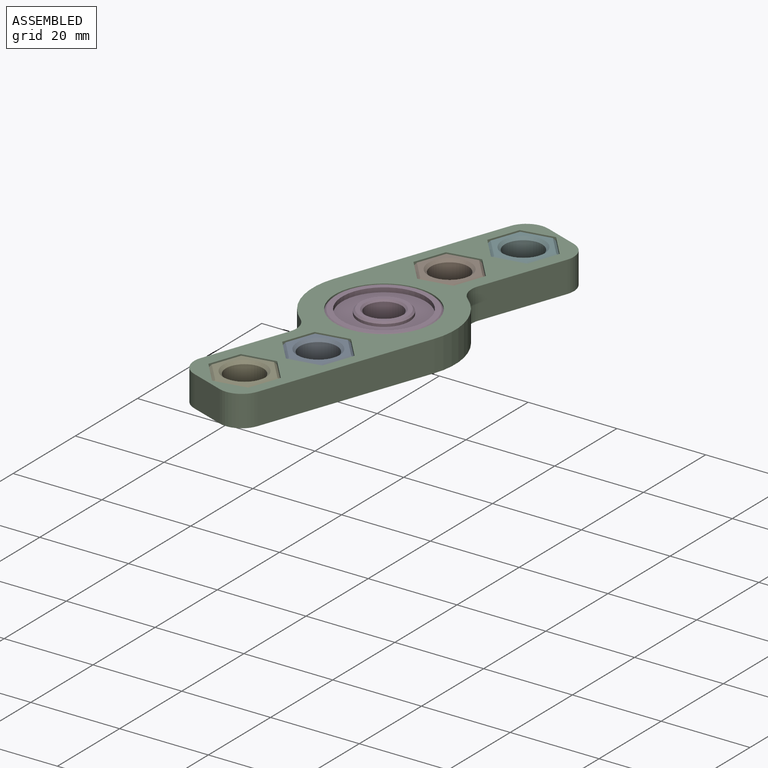
[diagram: assembled view]
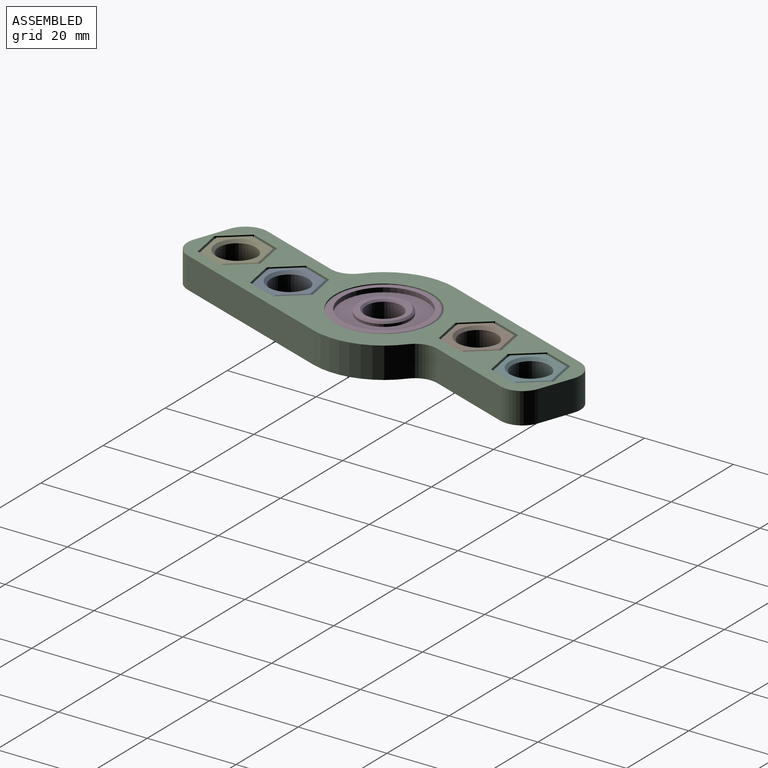
[diagram: assembled view, second angle]
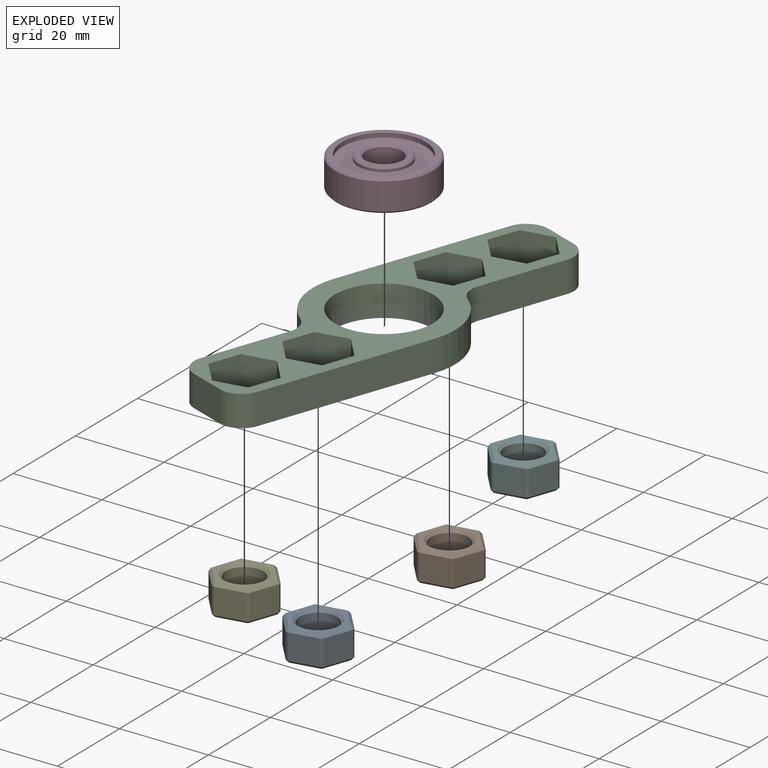
[diagram: exploded view]
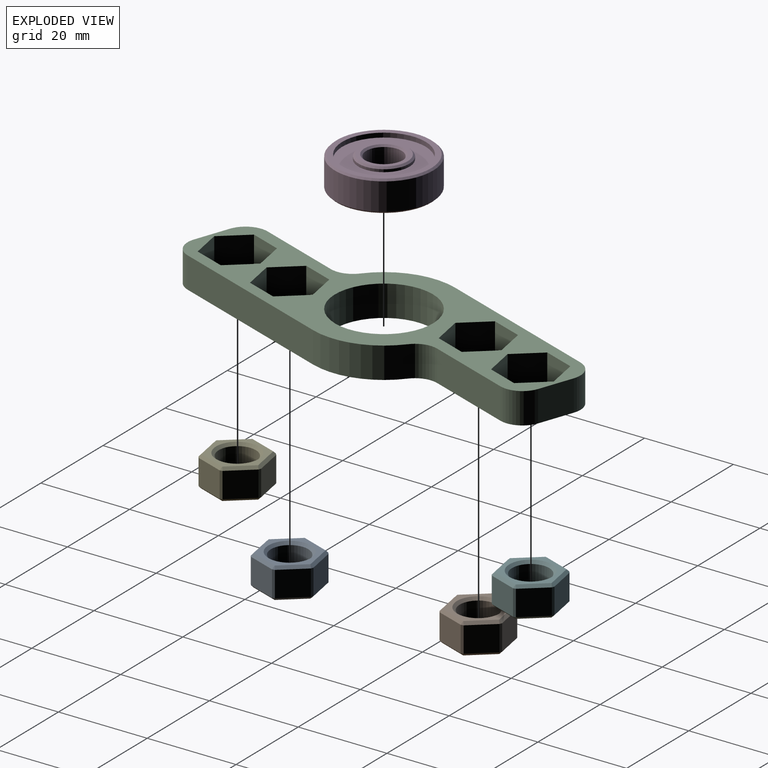
[diagram: exploded view, second angle]
ASSEMBLY  parts=6 mates=5
PART A: 41 faces, bbox 12.7x14.4x7 mm
  f0: plane 5.8x5.77mm, normal (-0.5,-0.87,0), area 38.6mm2, adj f9,f13,f14,f15
  f1: plane 5.8x5.77mm, normal (0.5,-0.87,0), area 38.6mm2, adj f15,f16,f24,f25
  f2: plane 6.66x5.8mm, normal (1,0,0), area 38.6mm2, adj f25,f26,f34,f35
  f3: plane 5.8x5.77mm, normal (0.5,0.87,0), area 38.6mm2, adj f27,f32,f35,f38
  f4: plane 5.8x5.77mm, normal (-0.5,0.87,0), area 38.6mm2, adj f21,f22,f32,f33
  f5: plane 6.66x5.8mm, normal (-1,0,0), area 38.6mm2, adj f12,f13,f22,f23
  f6: cylinder r=4.2mm len=8.4mm, axis (0,0,-1), area 153.1mm2, adj f39,f40
  f7: plane 13.31x11.53mm, normal (0,0,1), area 42.8mm2, adj f9,f12,f16,f21,f26,f27,f39
  f8: plane 13.31x11.53mm, normal (0,0,-1), area 42.8mm2, adj f14,f23,f24,f33,f34,f38,f40
  f9: plane 6.07x3.85mm, normal (-0.35,-0.61,0.71), area 5.6mm2, adj f0,f7,f10,f11
  f10: plane 0.6x0.6mm, normal (-0.65,-0.38,0.65), area 0.2mm2, adj f9,f12,f13
  f11: plane 0.6x0.6mm, normal (0,-0.76,0.65), area 0.2mm2, adj f9,f15,f16
  f12: plane 6.66x0.6mm, normal (-0.71,0,0.71), area 5.6mm2, adj f5,f7,f10,f17
  f13: plane 5.8x0.52mm, normal (-0.87,-0.5,0), area 3.5mm2, adj f0,f5,f10,f18
  f14: plane 6.07x3.85mm, normal (-0.35,-0.61,-0.71), area 5.6mm2, adj f0,f8,f18,f19
  f15: plane 5.8x0.6mm, normal (0,-1,0), area 3.5mm2, adj f0,f1,f11,f19
  f16: plane 6.07x3.85mm, normal (0.35,-0.61,0.71), area 5.6mm2, adj f1,f7,f11,f20
  f17: plane 0.6x0.6mm, normal (-0.65,0.38,0.65), area 0.2mm2, adj f12,f21,f22
  f18: plane 0.6x0.6mm, normal (-0.65,-0.38,-0.65), area 0.2mm2, adj f13,f14,f23
  f19: plane 0.6x0.6mm, normal (0,-0.76,-0.65), area 0.2mm2, adj f14,f15,f24
  f20: plane 0.6x0.6mm, normal (0.65,-0.38,0.65), area 0.2mm2, adj f16,f25,f26
  f21: plane 6.07x3.85mm, normal (-0.35,0.61,0.71), area 5.6mm2, adj f4,f7,f17,f28
  f22: plane 5.8x0.52mm, normal (-0.87,0.5,0), area 3.5mm2, adj f4,f5,f17,f29
  f23: plane 6.66x0.6mm, normal (-0.71,0,-0.71), area 5.6mm2, adj f5,f8,f18,f29
  f24: plane 6.07x3.85mm, normal (0.35,-0.61,-0.71), area 5.6mm2, adj f1,f8,f19,f30
  f25: plane 5.8x0.52mm, normal (0.87,-0.5,0), area 3.5mm2, adj f1,f2,f20,f30
  f26: plane 6.66x0.6mm, normal (0.71,0,0.71), area 5.6mm2, adj f2,f7,f20,f31
  f27: plane 6.07x3.85mm, normal (0.35,0.61,0.71), area 5.6mm2, adj f3,f7,f28,f31
  f28: plane 0.6x0.6mm, normal (0,0.76,0.65), area 0.2mm2, adj f21,f27,f32
  f29: plane 0.6x0.6mm, normal (-0.65,0.38,-0.65), area 0.2mm2, adj f22,f23,f33
  f30: plane 0.6x0.6mm, normal (0.65,-0.38,-0.65), area 0.2mm2, adj f24,f25,f34
  f31: plane 0.6x0.6mm, normal (0.65,0.38,0.65), area 0.2mm2, adj f26,f27,f35
  f32: plane 5.8x0.6mm, normal (0,1,0), area 3.5mm2, adj f3,f4,f28,f36
  f33: plane 6.07x3.85mm, normal (-0.35,0.61,-0.71), area 5.6mm2, adj f4,f8,f29,f36
  f34: plane 6.66x0.6mm, normal (0.71,0,-0.71), area 5.6mm2, adj f2,f8,f30,f37
  f35: plane 5.8x0.52mm, normal (0.87,0.5,0), area 3.5mm2, adj f2,f3,f31,f37
  f36: plane 0.6x0.6mm, normal (0,0.76,-0.65), area 0.2mm2, adj f32,f33,f38
  f37: plane 0.6x0.6mm, normal (0.65,0.38,-0.65), area 0.2mm2, adj f34,f35,f38
  f38: plane 6.07x3.85mm, normal (0.35,0.61,-0.71), area 5.6mm2, adj f3,f8,f36,f37
  f39: cone r=4.2mm half-angle=45deg, axis (0,0,1), area 24mm2, adj f6,f7
  f40: cone r=4.8mm half-angle=45deg, axis (0,0,-1), area 24mm2, adj f6,f8
PART B: same geometry as A
PART C: 41 faces, bbox 32.1x90x7 mm
  f0: plane 7x6.37mm, normal (0.5,-0.87,0), area 51.5mm2, adj f1,f38,f39,f40
  f1: plane 7x6.37mm, normal (-0.5,-0.87,0), area 51.4mm2, adj f0,f2,f39,f40
  f2: plane 7.35x7mm, normal (-1,0,0), area 51.5mm2, adj f1,f3,f39,f40
  f3: plane 7x6.37mm, normal (-0.5,0.87,0), area 51.4mm2, adj f2,f4,f39,f40
  f4: plane 7x6.37mm, normal (0.5,0.87,0), area 51.5mm2, adj f3,f38,f39,f40
  f5: plane 7x6.37mm, normal (-0.5,0.87,0), area 51.4mm2, adj f6,f33,f39,f40
  f6: plane 7x6.37mm, normal (0.5,0.87,0), area 51.5mm2, adj f5,f7,f39,f40
  f7: plane 7.35x7mm, normal (1,0,0), area 51.4mm2, adj f6,f8,f39,f40
  f8: plane 7x6.37mm, normal (0.5,-0.87,0), area 51.5mm2, adj f7,f9,f39,f40
  f9: plane 7x6.37mm, normal (-0.5,-0.87,0), area 51.4mm2, adj f8,f33,f39,f40
  f10: plane 7x6.37mm, normal (-0.5,0.87,0), area 51.5mm2, adj f11,f34,f39,f40
  f11: plane 7x6.37mm, normal (0.5,0.87,0), area 51.4mm2, adj f10,f12,f39,f40
  f12: plane 7.35x7mm, normal (1,0,0), area 51.5mm2, adj f11,f13,f39,f40
  f13: plane 7x6.37mm, normal (0.5,-0.87,0), area 51.4mm2, adj f12,f14,f39,f40
  f14: plane 7x6.37mm, normal (-0.5,-0.87,0), area 51.5mm2, adj f13,f34,f39,f40
  f15: plane 7x6.37mm, normal (0.5,-0.87,0), area 51.4mm2, adj f16,f35,f39,f40
  f16: plane 7x6.37mm, normal (-0.5,-0.87,0), area 51.5mm2, adj f15,f17,f39,f40
  f17: plane 7.35x7mm, normal (-1,0,0), area 51.4mm2, adj f16,f18,f39,f40
  f18: plane 7x6.37mm, normal (-0.5,0.87,0), area 51.5mm2, adj f17,f19,f39,f40
  f19: plane 7x6.37mm, normal (0.5,0.87,0), area 51.4mm2, adj f18,f35,f39,f40
  f20: plane 20.16x7mm, normal (1,0,0), area 141.1mm2, adj f21,f36,f39,f40
  f21: cylinder r=5mm len=7mm, axis (0,0,-1), area 55mm2, adj f20,f22,f39,f40
  f22: plane 8.09x7mm, normal (0,1,0), area 56.6mm2, adj f21,f23,f39,f40
  f23: cylinder r=5mm len=7mm, axis (0,0,-1), area 55mm2, adj f22,f24,f39,f40
  f24: plane 40x7mm, normal (-1,0,0), area 280mm2, adj f23,f25,f39,f40
  f25: cylinder r=16.05mm len=15.13mm, axis (0,0,-1), area 138.2mm2, adj f24,f26,f39,f40
  f26: cylinder r=5mm len=7mm, axis (0,0,-1), area 43mm2, adj f25,f27,f39,f40
  f27: plane 20.16x7mm, normal (-1,0,0), area 141.1mm2, adj f26,f28,f39,f40
  f28: cylinder r=5mm len=7mm, axis (0,0,-1), area 55mm2, adj f27,f29,f39,f40
  f29: plane 8.09x7mm, normal (0,-1,0), area 56.6mm2, adj f28,f30,f39,f40
  f30: cylinder r=5mm len=7mm, axis (0,0,-1), area 55mm2, adj f29,f31,f39,f40
  f31: plane 40x7mm, normal (1,0,0), area 280mm2, adj f30,f32,f39,f40
  f32: cylinder r=16.05mm len=15.13mm, axis (0,0,-1), area 138.2mm2, adj f31,f36,f39,f40
  f33: plane 7.35x7mm, normal (-1,0,0), area 51.4mm2, adj f5,f9,f39,f40
  f34: plane 7.35x7mm, normal (-1,0,0), area 51.5mm2, adj f10,f14,f39,f40
  f35: plane 7.35x7mm, normal (1,0,0), area 51.4mm2, adj f15,f19,f39,f40
  f36: cylinder r=5mm len=7mm, axis (0,0,-1), area 43mm2, adj f20,f32,f39,f40
  f37: cylinder r=11.05mm len=22.1mm, axis (0,0,-1), area 486mm2, adj f39,f40
  f38: plane 7.35x7mm, normal (1,0,0), area 51.5mm2, adj f0,f4,f39,f40
  f39: plane 90x32.1mm, normal (0,0,1), area 1006.2mm2, adj f0,f1,f2,f3,f4,f5,f6,f7
  f40: plane 90x32.1mm, normal (0,0,-1), area 1006.2mm2, adj f0,f1,f2,f3,f4,f5,f6,f7
PART D: 18 faces, bbox 22.1x22.1x7 mm
  f0: plane 18.8x18.8mm, normal (0,0,1), area 173.7mm2, adj f3,f11
  f1: plane 18.8x18.8mm, normal (0,0,-1), area 173.7mm2, adj f2,f9
  f2: cylinder r=9.4mm len=18.8mm, axis (0,0,-1), area 59.1mm2, adj f1,f6
  f3: cylinder r=9.4mm len=18.8mm, axis (0,0,-1), area 59.1mm2, adj f0,f5
  f4: cylinder r=11.05mm len=22.1mm, axis (0,0,-1), area 430.5mm2, adj f7,f8
  f5: plane 21.3x21.3mm, normal (0,0,1), area 78.7mm2, adj f3,f8
  f6: plane 21.3x21.3mm, normal (0,0,-1), area 78.7mm2, adj f2,f7
  f7: cone r=11.05mm half-angle=45deg, axis (0,0,1), area 38.6mm2, adj f4,f6
  f8: cone r=10.65mm half-angle=45deg, axis (0,0,-1), area 38.6mm2, adj f4,f5
  f9: cylinder r=5.75mm len=11.5mm, axis (0,0,-1), area 21.7mm2, adj f1,f14
  f10: cylinder r=4mm len=8mm, axis (0,0,-1), area 155.8mm2, adj f15,f17
  f11: cylinder r=5.75mm len=11.5mm, axis (0,0,-1), area 21.7mm2, adj f0,f16
  f12: plane 10.7x10.7mm, normal (0,0,1), area 29.1mm2, adj f16,f17
  f13: plane 10.7x10.7mm, normal (0,0,-1), area 29.1mm2, adj f14,f15
  f14: cone r=5.75mm half-angle=45deg, axis (0,0,1), area 19.7mm2, adj f9,f13
  f15: cone r=4.4mm half-angle=45deg, axis (0,0,-1), area 14.9mm2, adj f10,f13
  f16: cone r=5.35mm half-angle=45deg, axis (0,0,-1), area 19.7mm2, adj f11,f12
  f17: cone r=4mm half-angle=45deg, axis (0,0,1), area 14.9mm2, adj f10,f12
PART E: same geometry as A
PART F: same geometry as A
PLACE A rot(axis=(0,0,1),160.3deg) t=(33.11,-14.75,-26.32)mm
PLACE B rot(axis=(0,0,1),160.3deg) t=(32.98,27.67,-26.32)mm
PLACE C rot(axis=(0,0,1),160.3deg) t=(33.04,6.46,-26.32)mm
PLACE D t=(33.04,6.46,-22.82)mm fixed
PLACE E rot(axis=(0,0,1),160.3deg) t=(27.48,-30.48,-26.32)mm
PLACE F rot(axis=(0,0,1),160.3deg) t=(38.6,43.39,-26.32)mm
MATE fastened C.f35 <-> B.f5  axis (-0.94,0.34,0) through (38.97,25.53,-22.82)mm
MATE revolute D.f4 <-> C.f37  axis (0,0,-1) through (33.04,6.46,-22.82)mm
MATE fastened F.f5 <-> C.f12  axis (0.94,-0.34,0) through (44.59,41.25,-22.82)mm
MATE fastened A.f2 <-> C.f33  axis (-0.94,0.34,0) through (27.11,-12.61,-22.82)mm
MATE fastened E.f2 <-> C.f2  axis (-0.94,0.34,0) through (21.49,-28.33,-22.82)mm
